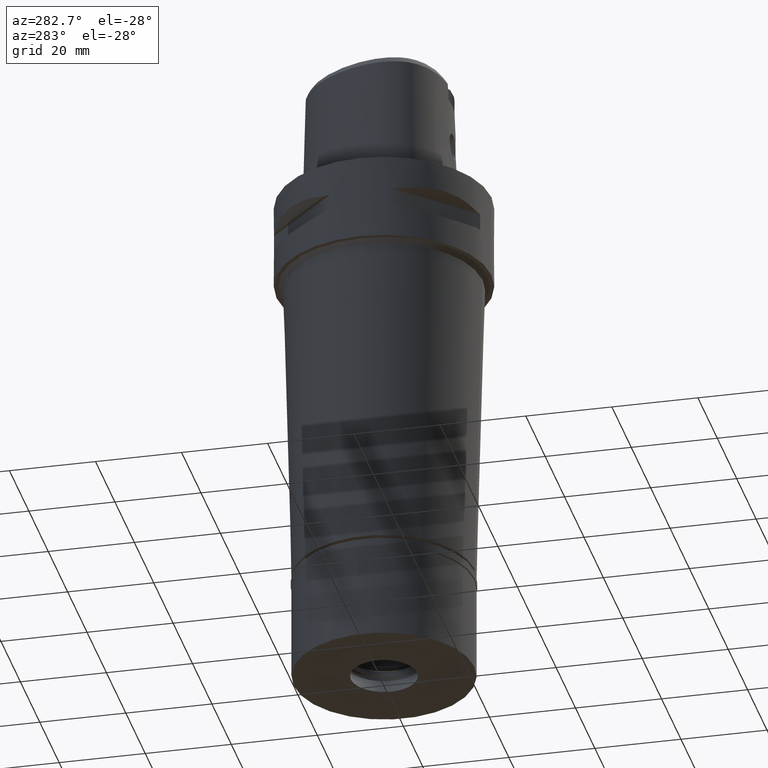
[diagram: clean part render]
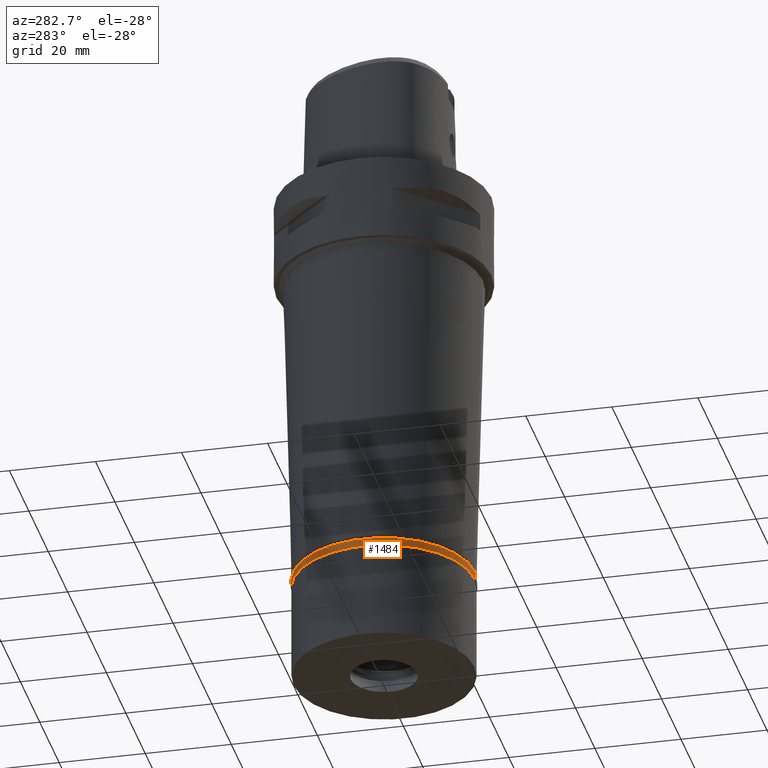
[diagram: same view with one face highlighted and labeled with its STEP entity id]
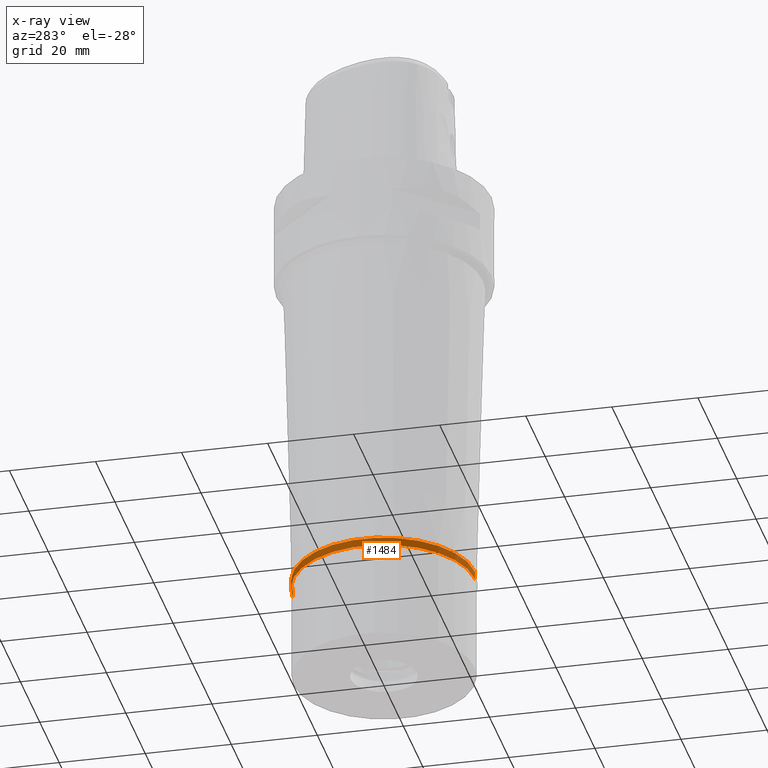
[diagram: x-ray of the same camera — body ghosted, the highlighted face saturated]
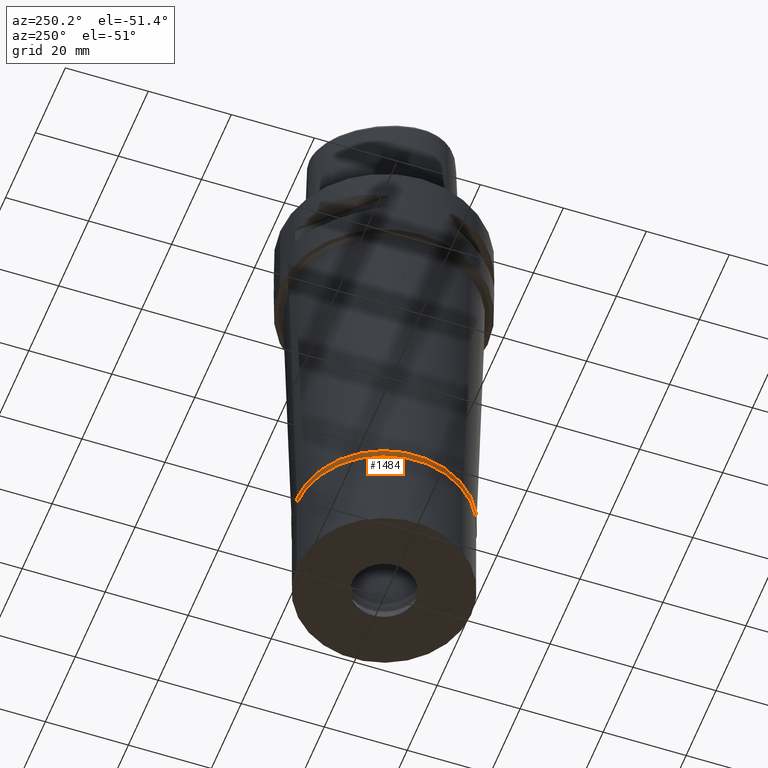
[diagram: same view with one face highlighted and labeled with its STEP entity id]
A machine part, auxiliary view. The second image highlights one B-rep face of the part: STEP entity #1484.
The next image is the same camera in x-ray: the body ghosted, the highlighted face saturated — about 0% of this face is hidden behind the body in this view.
A second angle (auxiliary view) of the same face is appended — the face is thin or edge-on in the first view.
In plain terms, the highlighted cylindrical surface (partial cylindrical patch) has radius 21.15 mm, axis along (0, 0, -1).
Its self-contained STEP definition (entity closure, byte-faithful):
#24 = VECTOR ( 'NONE', #2711, 1000.000000000000000 ) ;
#94 = EDGE_CURVE ( 'NONE', #559, #2454, #2705, .T. ) ;
#229 = VERTEX_POINT ( 'NONE', #539 ) ;
#335 = CARTESIAN_POINT ( 'NONE',  ( 0.0000000000000000000, 21.14999999999999858, 0.0000000000000000000 ) ) ;
#391 = VECTOR ( 'NONE', #2074, 1000.000000000000000 ) ;
#405 = CARTESIAN_POINT ( 'NONE',  ( 0.0000000000000000000, 0.0000000000000000000, -1.850000000000000089 ) ) ;
#539 = CARTESIAN_POINT ( 'NONE',  ( 0.0000000000000000000, 21.14999999999999858, -1.850000000000000089 ) ) ;
#559 = VERTEX_POINT ( 'NONE', #619 ) ;
#565 = CARTESIAN_POINT ( 'NONE',  ( 0.0000000000000000000, 21.14999999999999858, 0.0000000000000000000 ) ) ;
#619 = CARTESIAN_POINT ( 'NONE',  ( 0.0000000000000000000, -21.14999999999999858, 0.0000000000000000000 ) ) ;
#742 = CARTESIAN_POINT ( 'NONE',  ( 0.0000000000000000000, 0.0000000000000000000, 0.0000000000000000000 ) ) ;
#900 = AXIS2_PLACEMENT_3D ( 'NONE', #742, #2257, #3751 ) ;
#954 = ORIENTED_EDGE ( 'NONE', *, *, #3203, .T. ) ;
#1082 = DIRECTION ( 'NONE',  ( 0.0000000000000000000, -1.000000000000000000, 0.0000000000000000000 ) ) ;
#1171 = ORIENTED_EDGE ( 'NONE', *, *, #1560, .F. ) ;
#1200 = DIRECTION ( 'NONE',  ( 0.0000000000000000000, 0.0000000000000000000, 1.000000000000000000 ) ) ;
#1459 = CYLINDRICAL_SURFACE ( 'NONE', #2304, 21.14999999999999858 ) ;
#1484 = ADVANCED_FACE ( 'NONE', ( #4114 ), #1459, .T. ) ;
#1560 = EDGE_CURVE ( 'NONE', #559, #3832, #4615, .T. ) ;
#1637 = CIRCLE ( 'NONE', #2887, 21.14999999999999858 ) ;
#1647 = CARTESIAN_POINT ( 'NONE',  ( 0.0000000000000000000, -21.14999999999999858, 0.0000000000000000000 ) ) ;
#2074 = DIRECTION ( 'NONE',  ( 0.0000000000000000000, 0.0000000000000000000, -1.000000000000000000 ) ) ;
#2257 = DIRECTION ( 'NONE',  ( 0.0000000000000000000, 0.0000000000000000000, -1.000000000000000000 ) ) ;
#2304 = AXIS2_PLACEMENT_3D ( 'NONE', #2950, #4448, #1082 ) ;
#2354 = DIRECTION ( 'NONE',  ( 0.0000000000000000000, 1.000000000000000000, 0.0000000000000000000 ) ) ;
#2454 = VERTEX_POINT ( 'NONE', #335 ) ;
#2705 = CIRCLE ( 'NONE', #900, 21.14999999999999858 ) ;
#2711 = DIRECTION ( 'NONE',  ( 0.0000000000000000000, 0.0000000000000000000, -1.000000000000000000 ) ) ;
#2791 = ORIENTED_EDGE ( 'NONE', *, *, #4710, .T. ) ;
#2887 = AXIS2_PLACEMENT_3D ( 'NONE', #405, #1200, #2354 ) ;
#2898 = EDGE_LOOP ( 'NONE', ( #2791, #1171, #3146, #954 ) ) ;
#2950 = CARTESIAN_POINT ( 'NONE',  ( 0.0000000000000000000, 0.0000000000000000000, 0.0000000000000000000 ) ) ;
#3030 = CARTESIAN_POINT ( 'NONE',  ( 0.0000000000000000000, -21.14999999999999858, -1.850000000000000089 ) ) ;
#3146 = ORIENTED_EDGE ( 'NONE', *, *, #94, .T. ) ;
#3203 = EDGE_CURVE ( 'NONE', #2454, #229, #4682, .T. ) ;
#3751 = DIRECTION ( 'NONE',  ( 0.0000000000000000000, -1.000000000000000000, 0.0000000000000000000 ) ) ;
#3832 = VERTEX_POINT ( 'NONE', #3030 ) ;
#4114 = FACE_OUTER_BOUND ( 'NONE', #2898, .T. ) ;
#4448 = DIRECTION ( 'NONE',  ( 0.0000000000000000000, 0.0000000000000000000, -1.000000000000000000 ) ) ;
#4615 = LINE ( 'NONE', #1647, #24 ) ;
#4682 = LINE ( 'NONE', #565, #391 ) ;
#4710 = EDGE_CURVE ( 'NONE', #229, #3832, #1637, .T. ) ;